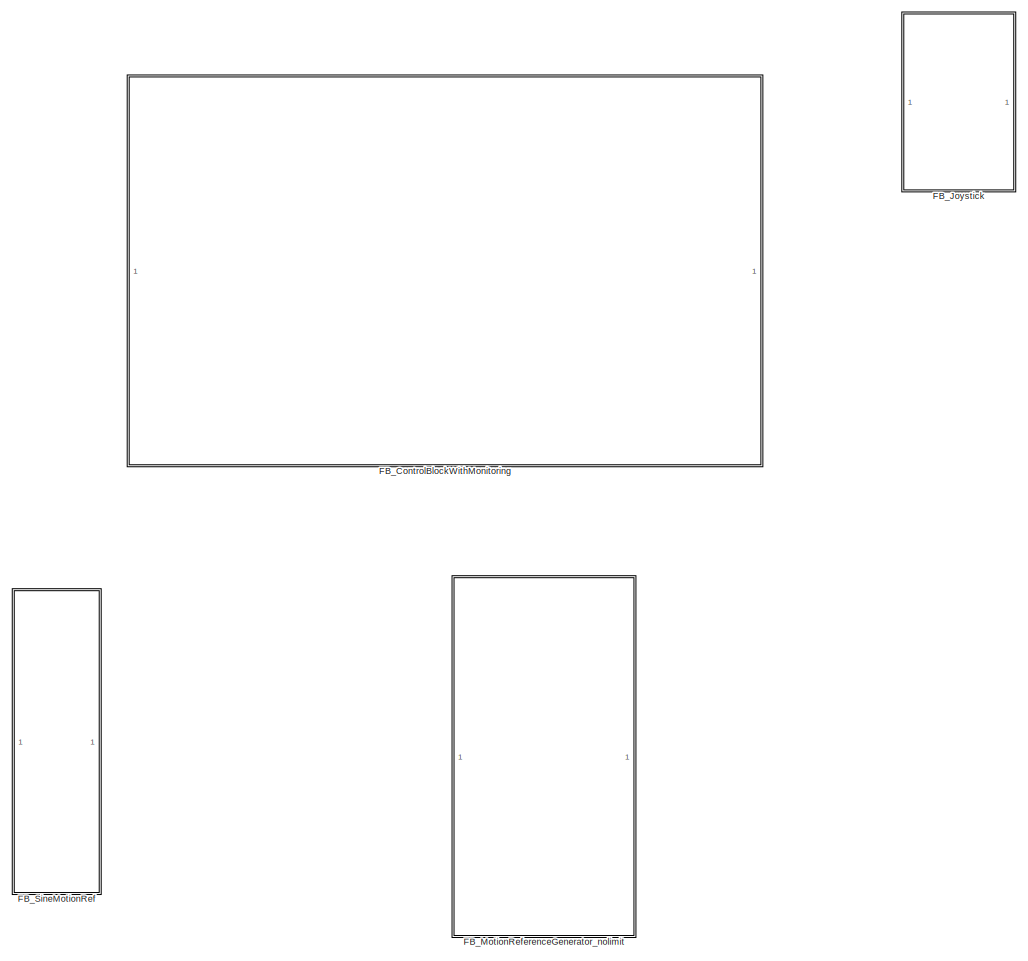
[diagram: root canvas - part 1/2, center side, full height]
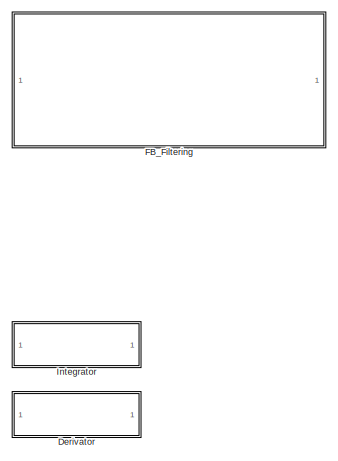
[diagram: root canvas - part 2/2, top left region]
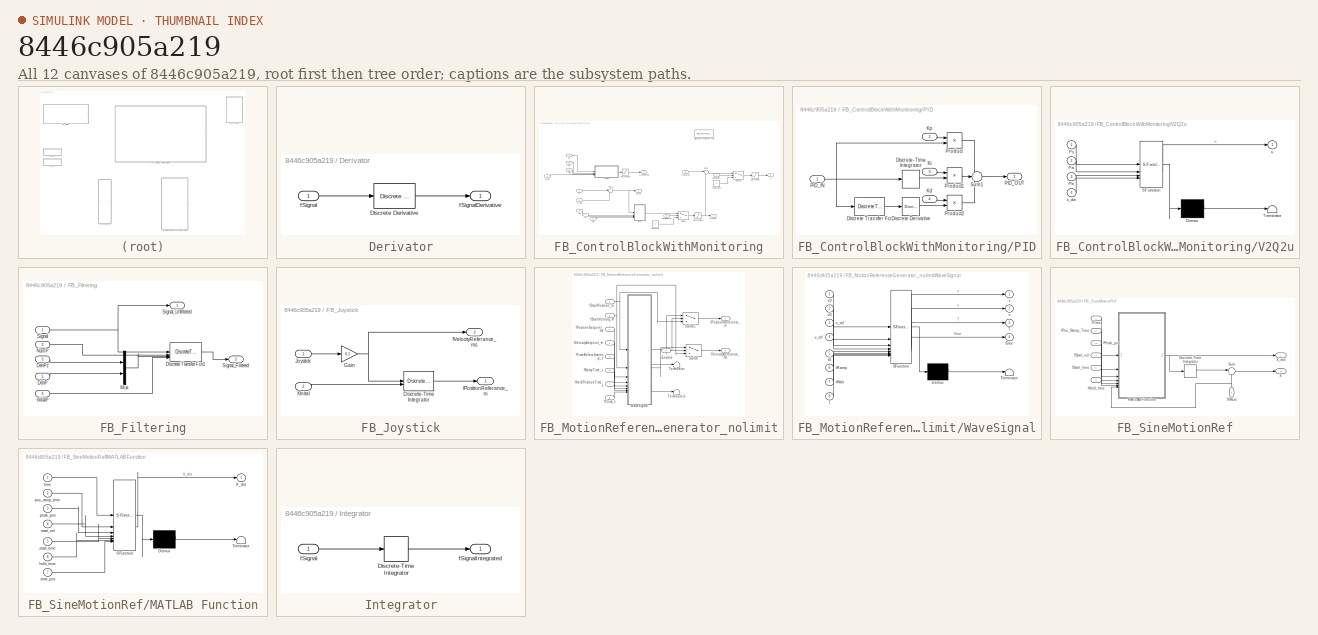
[diagram: thumbnail index - all 12 canvases of the model, root first then tree order]
MODEL slx_8446c905a219
KIND model
CONFIG AbsTol = auto
CONFIG EnableMultiTasking = off
CONFIG FixedStep = 0.001
CONFIG MaxStep = auto
CONFIG MinStep = auto
CONFIG RelTol = 1e-3
CONFIG SampleTimeConstraint = Unconstrained
CONFIG SolverName = FixedStepAuto
CONFIG StartTime = 0.0
CONFIG StopTime = 10.0
BLOCK [SubSystem] Derivator
  TreatAsAtomicUnit = on
BLOCK [Reference] Derivator/Discrete Derivative  REF=simulink/Discrete/Discrete Derivative
  SourceBlock = simulink/Discrete/Discrete Derivative
  SourceType = Discrete Derivative
BLOCK [Inport] Derivator/fSignal
BLOCK [Outport] Derivator/fSignalDerivative
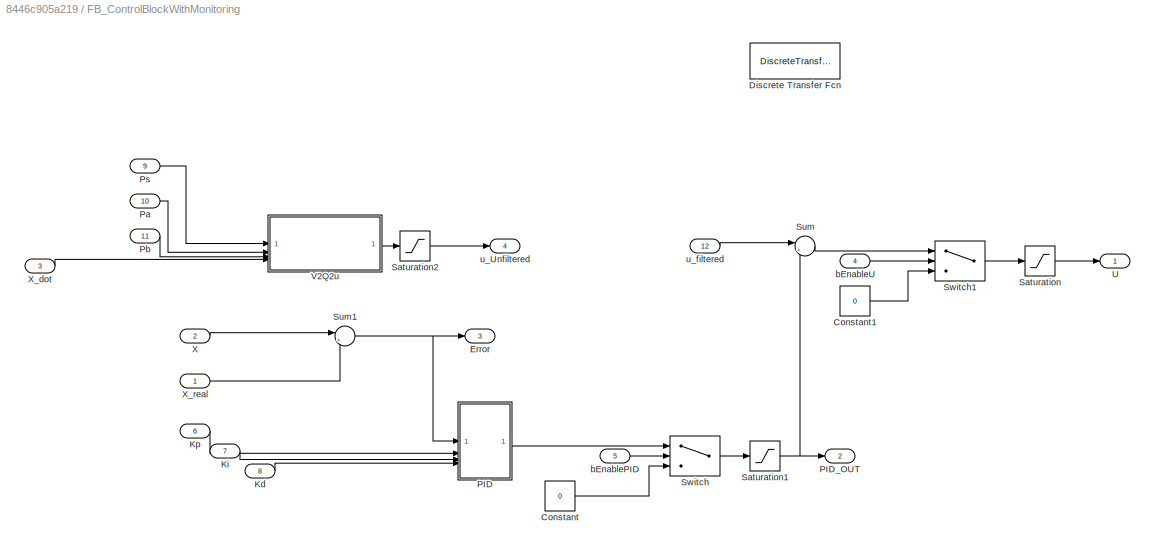
BLOCK [SubSystem] FB_ControlBlockWithMonitoring
  PortSchema = {"entries":[{"content":{"sides":[{"content":{"connectorIds":["In1","In2","In3"]},"type":"ConnectorPlacement.EquallySpacedRectSide","uuid":"e7dc98bc-0c39-42fc-9d44-5c528a861935"},{"content":{"connectorIds":["In6","In7","In8","In9","In10","In11","In12","Out1","Out2","Out3"],"side":"RIGHT"},"type":"ConnectorPlacement.EquallySpacedRectSide","uuid":"7a7fb2e4-7f4e-4840-80a8-3a9723ecfbf6"},{"content":{"c...<+455ch>
  TreatAsAtomicUnit = on
BLOCK [Constant] FB_ControlBlockWithMonitoring/Constant
  Value = 0
BLOCK [Constant] FB_ControlBlockWithMonitoring/Constant1
  Value = 0
BLOCK [DiscreteTransferFcn] FB_ControlBlockWithMonitoring/Discrete Transfer Fcn
  CloseFcn = dspblkCoreblockFVToolHelper(gcbh,'close');
  Commented = on
  CopyFcn = dspblkCoreblockFVToolHelper(gcbh,'copy');
  DeleteFcn = dspblkCoreblockFVToolHelper(gcbh,'close');
  Denominator = [1 -0.9048]
  InputPortMap = u0
  LoadFcn = dspblkCoreblockFVToolHelper(gcbh,'load');
  ModelCloseFcn = dspblkCoreblockFVToolHelper(gcbh,'close');
  Numerator = [0.09516]
  PostSaveFcn = dspblkCoreblockFVToolHelper(gcbh,'postsave');
  PreSaveFcn = dspblkCoreblockFVToolHelper(gcbh,'presave');
BLOCK [Outport] FB_ControlBlockWithMonitoring/Error
  Port = 3
BLOCK [Inport] FB_ControlBlockWithMonitoring/Kd
  Port = 8
BLOCK [Inport] FB_ControlBlockWithMonitoring/Ki
  Port = 7
BLOCK [Inport] FB_ControlBlockWithMonitoring/Kp
  Port = 6
BLOCK [SubSystem] FB_ControlBlockWithMonitoring/PID
BLOCK [Reference] FB_ControlBlockWithMonitoring/PID/Discrete Derivative  REF=simulink/Discrete/Discrete Derivative
  SourceBlock = simulink/Discrete/Discrete Derivative
  SourceType = Discrete Derivative
BLOCK [DiscreteTransferFcn] FB_ControlBlockWithMonitoring/PID/Discrete Transfer Fcn
  CloseFcn = dspblkCoreblockFVToolHelper(gcbh,'close');
  CopyFcn = dspblkCoreblockFVToolHelper(gcbh,'copy');
  DeleteFcn = dspblkCoreblockFVToolHelper(gcbh,'close');
  Denominator = [1 -0.999]
  InputPortMap = u0
  LoadFcn = dspblkCoreblockFVToolHelper(gcbh,'load');
  ModelCloseFcn = dspblkCoreblockFVToolHelper(gcbh,'close');
  Numerator = [0.0009995]
  PostSaveFcn = dspblkCoreblockFVToolHelper(gcbh,'postsave');
  PreSaveFcn = dspblkCoreblockFVToolHelper(gcbh,'presave');
BLOCK [DiscreteIntegrator] FB_ControlBlockWithMonitoring/PID/Discrete-Time Integrator
  ICPrevOutput = DiscIntNeverNeededParam
  ICPrevScaledInput = DiscIntNeverNeededParam
  InitialConditionSetting = Auto
  SampleTime = -1
BLOCK [Inport] FB_ControlBlockWithMonitoring/PID/Kd
  NameLocation = top
  Port = 4
BLOCK [Inport] FB_ControlBlockWithMonitoring/PID/Ki
  NameLocation = top
  Port = 3
BLOCK [Inport] FB_ControlBlockWithMonitoring/PID/Kp
  NameLocation = top
  Port = 2
BLOCK [Inport] FB_ControlBlockWithMonitoring/PID/PID_IN
BLOCK [Outport] FB_ControlBlockWithMonitoring/PID/PID_OUT
BLOCK [Product] FB_ControlBlockWithMonitoring/PID/Product
BLOCK [Product] FB_ControlBlockWithMonitoring/PID/Product1
BLOCK [Product] FB_ControlBlockWithMonitoring/PID/Product2
BLOCK [Sum] FB_ControlBlockWithMonitoring/PID/Sum1
  Inputs = +++
BLOCK [Outport] FB_ControlBlockWithMonitoring/PID_OUT
  Port = 2
BLOCK [Inport] FB_ControlBlockWithMonitoring/Pa
  Port = 10
BLOCK [Inport] FB_ControlBlockWithMonitoring/Pb
  Port = 11
BLOCK [Inport] FB_ControlBlockWithMonitoring/Ps
  Port = 9
BLOCK [Saturate] FB_ControlBlockWithMonitoring/Saturation
  LowerLimit = -1
  UpperLimit = 1
BLOCK [Saturate] FB_ControlBlockWithMonitoring/Saturation1
  LowerLimit = -1
  UpperLimit = 1
BLOCK [Saturate] FB_ControlBlockWithMonitoring/Saturation2
  LowerLimit = -1
  UpperLimit = 1
BLOCK [Sum] FB_ControlBlockWithMonitoring/Sum
  Inputs = |++
BLOCK [Sum] FB_ControlBlockWithMonitoring/Sum1
  Inputs = |+-
BLOCK [Switch] FB_ControlBlockWithMonitoring/Switch
  Criteria = u2 > Threshold
  InputSameDT = off
  SaturateOnIntegerOverflow = off
BLOCK [Switch] FB_ControlBlockWithMonitoring/Switch1
  Criteria = u2 > Threshold
  InputSameDT = off
  SaturateOnIntegerOverflow = off
BLOCK [Outport] FB_ControlBlockWithMonitoring/U
BLOCK [SubSystem] FB_ControlBlockWithMonitoring/V2Q2u
  ErrorFcn = Stateflow.Translate.translate
  PermitHierarchicalResolution = ExplicitOnly
  SFBlockType = MATLAB Function
  TreatAsAtomicUnit = on
BLOCK [Demux] FB_ControlBlockWithMonitoring/V2Q2u/ Demux 
  Outputs = 1
BLOCK [S-Function] FB_ControlBlockWithMonitoring/V2Q2u/ SFunction 
  EnableBusSupport = on
  FunctionName = sf_sfun
  PortCounts = [4 2]
  SFcnIsStateOwnerBlock = off
  SFunctionDeploymentMode = off
  Tag = Stateflow S-Function 5
BLOCK [Terminator] FB_ControlBlockWithMonitoring/V2Q2u/ Terminator 
BLOCK [Inport] FB_ControlBlockWithMonitoring/V2Q2u/Pa
  Port = 2
BLOCK [Inport] FB_ControlBlockWithMonitoring/V2Q2u/Pb
  Port = 3
BLOCK [Inport] FB_ControlBlockWithMonitoring/V2Q2u/Ps
BLOCK [Outport] FB_ControlBlockWithMonitoring/V2Q2u/u
BLOCK [Inport] FB_ControlBlockWithMonitoring/V2Q2u/x_dot
  Port = 4
BLOCK [Inport] FB_ControlBlockWithMonitoring/X
  Port = 2
BLOCK [Inport] FB_ControlBlockWithMonitoring/X_dot
  Port = 3
BLOCK [Inport] FB_ControlBlockWithMonitoring/X_real
BLOCK [Inport] FB_ControlBlockWithMonitoring/bEnablePID
  OutDataTypeStr = boolean
  Port = 5
BLOCK [Inport] FB_ControlBlockWithMonitoring/bEnableU
  OutDataTypeStr = boolean
  Port = 4
BLOCK [Outport] FB_ControlBlockWithMonitoring/u_Unfiltered
  Port = 4
BLOCK [Inport] FB_ControlBlockWithMonitoring/u_filtered
  Port = 12
BLOCK [SubSystem] FB_Filtering
  TreatAsAtomicUnit = on
BLOCK [Inport] FB_Filtering/DenP
  Port = 5
BLOCK [Inport] FB_Filtering/DenPz
  Port = 3
BLOCK [DiscreteTransferFcn] FB_Filtering/Discrete Transfer Fcn1
  CloseFcn = dspblkCoreblockFVToolHelper(gcbh,'close');
  CopyFcn = dspblkCoreblockFVToolHelper(gcbh,'copy');
  DeleteFcn = dspblkCoreblockFVToolHelper(gcbh,'close');
  Denominator = [1 -0.9969]
  DenominatorSource = Input port
  InitialStatesSource = Input port
  InputPortMap = u0,p1,p3,p5
  LoadFcn = dspblkCoreblockFVToolHelper(gcbh,'load');
  ModelCloseFcn = dspblkCoreblockFVToolHelper(gcbh,'close');
  Numerator = [0.003137]
  NumeratorSource = Input port
  PostSaveFcn = dspblkCoreblockFVToolHelper(gcbh,'postsave');
  PreSaveFcn = dspblkCoreblockFVToolHelper(gcbh,'presave');
  a0EqualsOne = on
BLOCK [Inport] FB_Filtering/InitialP
  Port = 4
BLOCK [Mux] FB_Filtering/Mux
  DisplayOption = bar
  Inputs = 2
BLOCK [Inport] FB_Filtering/NumP
  Port = 2
BLOCK [Inport] FB_Filtering/Signal
BLOCK [Outport] FB_Filtering/Signal_Filtered
  Port = 2
BLOCK [Outport] FB_Filtering/Signal_Unfiltered
BLOCK [SubSystem] FB_Joystick
  TreatAsAtomicUnit = on
BLOCK [DiscreteIntegrator] FB_Joystick/Discrete-Time Integrator
  ICPrevOutput = DiscIntNeverNeededParam
  ICPrevScaledInput = DiscIntNeverNeededParam
  InitialConditionSetting = Auto
  InitialConditionSource = external
  LimitOutput = on
  LowerSaturationLimit = 0
  SampleTime = -1
  UpperSaturationLimit = 0.45
BLOCK [Gain] FB_Joystick/Gain
  Gain = 0.1
BLOCK [Inport] FB_Joystick/Joystick
BLOCK [Inport] FB_Joystick/XInital
  Port = 2
BLOCK [Outport] FB_Joystick/fPositionReferance_m
BLOCK [Outport] FB_Joystick/fVelocityReferance_ms
  Port = 2
BLOCK [SubSystem] FB_MotionReferenceGenerator_nolimit
  TreatAsAtomicUnit = on
  VariantControl = Ramp_Profile
BLOCK [Switch] FB_MotionReferenceGenerator_nolimit/Switch
  Criteria = u2 > Threshold
  InputSameDT = off
  SaturateOnIntegerOverflow = off
BLOCK [Switch] FB_MotionReferenceGenerator_nolimit/Switch1
  Criteria = u2 > Threshold
  InputSameDT = off
  SaturateOnIntegerOverflow = off
BLOCK [Terminator] FB_MotionReferenceGenerator_nolimit/Terminator
BLOCK [Terminator] FB_MotionReferenceGenerator_nolimit/Terminator1
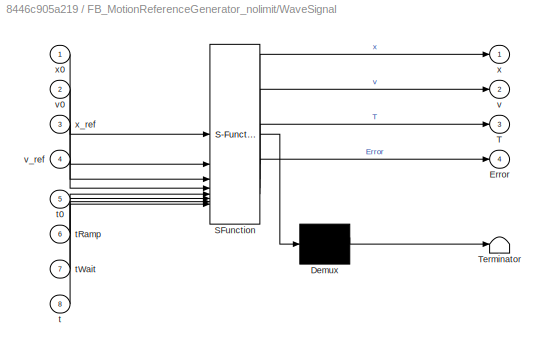
BLOCK [SubSystem] FB_MotionReferenceGenerator_nolimit/WaveSignal
  ErrorFcn = Stateflow.Translate.translate
  PermitHierarchicalResolution = ExplicitOnly
  SFBlockType = MATLAB Function
  TreatAsAtomicUnit = on
BLOCK [Demux] FB_MotionReferenceGenerator_nolimit/WaveSignal/ Demux 
  Outputs = 1
BLOCK [S-Function] FB_MotionReferenceGenerator_nolimit/WaveSignal/ SFunction 
  EnableBusSupport = on
  FunctionName = sf_sfun
  PortCounts = [8 5]
  SFcnIsStateOwnerBlock = off
  SFunctionDeploymentMode = off
  Tag = Stateflow S-Function 1
BLOCK [Terminator] FB_MotionReferenceGenerator_nolimit/WaveSignal/ Terminator 
BLOCK [Outport] FB_MotionReferenceGenerator_nolimit/WaveSignal/Error
  Port = 4
  VectorParamsAs1DForOutWhenUnconnected = off
BLOCK [Outport] FB_MotionReferenceGenerator_nolimit/WaveSignal/T
  Port = 3
  VectorParamsAs1DForOutWhenUnconnected = off
BLOCK [Inport] FB_MotionReferenceGenerator_nolimit/WaveSignal/t
  Port = 8
BLOCK [Inport] FB_MotionReferenceGenerator_nolimit/WaveSignal/t0
  Port = 5
BLOCK [Inport] FB_MotionReferenceGenerator_nolimit/WaveSignal/tRamp
  Port = 6
BLOCK [Inport] FB_MotionReferenceGenerator_nolimit/WaveSignal/tWait
  Port = 7
BLOCK [Outport] FB_MotionReferenceGenerator_nolimit/WaveSignal/v
  Port = 2
  VectorParamsAs1DForOutWhenUnconnected = off
BLOCK [Inport] FB_MotionReferenceGenerator_nolimit/WaveSignal/v0
  Port = 2
BLOCK [Inport] FB_MotionReferenceGenerator_nolimit/WaveSignal/v_ref
  Port = 4
BLOCK [Outport] FB_MotionReferenceGenerator_nolimit/WaveSignal/x
  VectorParamsAs1DForOutWhenUnconnected = off
BLOCK [Inport] FB_MotionReferenceGenerator_nolimit/WaveSignal/x0
BLOCK [Inport] FB_MotionReferenceGenerator_nolimit/WaveSignal/x_ref
  Port = 3
BLOCK [Inport] FB_MotionReferenceGenerator_nolimit/bEnable
  OutDataTypeStr = boolean
  Port = 9
BLOCK [Inport] FB_MotionReferenceGenerator_nolimit/fClock_s
  Port = 8
BLOCK [Inport] FB_MotionReferenceGenerator_nolimit/fHoldPositionTime_s
  Port = 7
BLOCK [Outport] FB_MotionReferenceGenerator_nolimit/fPositionReference_m
  VectorParamsAs1DForOutWhenUnconnected = off
BLOCK [Inport] FB_MotionReferenceGenerator_nolimit/fPositionSetpoint_ms
  Port = 3
BLOCK [Inport] FB_MotionReferenceGenerator_nolimit/fRampTime_s
  Port = 6
BLOCK [Inport] FB_MotionReferenceGenerator_nolimit/fStartPosition_m
BLOCK [Inport] FB_MotionReferenceGenerator_nolimit/fStartVelocity_m
  Port = 2
BLOCK [Inport] FB_MotionReferenceGenerator_nolimit/fTimeBeforeStarting_s
  Port = 5
BLOCK [Outport] FB_MotionReferenceGenerator_nolimit/fVelocityReference_ms
  Port = 2
  VectorParamsAs1DForOutWhenUnconnected = off
BLOCK [Inport] FB_MotionReferenceGenerator_nolimit/fVelocitySetpoint_m
  Port = 4
BLOCK [SubSystem] FB_SineMotionRef
  TreatAsAtomicUnit = on
BLOCK [DiscreteIntegrator] FB_SineMotionRef/Discrete-Time Integrator
  ICPrevOutput = DiscIntNeverNeededParam
  ICPrevScaledInput = DiscIntNeverNeededParam
  InitialConditionSetting = Auto
  SampleTime = -1
BLOCK [SubSystem] FB_SineMotionRef/MATLAB Function
  ErrorFcn = Stateflow.Translate.translate
  PermitHierarchicalResolution = ExplicitOnly
  SFBlockType = MATLAB Function
  TreatAsAtomicUnit = on
BLOCK [Demux] FB_SineMotionRef/MATLAB Function/ Demux 
  Outputs = 1
BLOCK [S-Function] FB_SineMotionRef/MATLAB Function/ SFunction 
  EnableBusSupport = on
  FunctionName = sf_sfun
  PortCounts = [7 2]
  SFcnIsStateOwnerBlock = off
  SFunctionDeploymentMode = off
  Tag = Stateflow S-Function 2
BLOCK [Terminator] FB_SineMotionRef/MATLAB Function/ Terminator 
BLOCK [Outport] FB_SineMotionRef/MATLAB Function/X_dot
BLOCK [Inport] FB_SineMotionRef/MATLAB Function/hold_time
  Port = 6
BLOCK [Inport] FB_SineMotionRef/MATLAB Function/peak_pos
  Port = 3
BLOCK [Inport] FB_SineMotionRef/MATLAB Function/pos_ramp_time
  Port = 2
BLOCK [Inport] FB_SineMotionRef/MATLAB Function/start_pos
  Port = 7
BLOCK [Inport] FB_SineMotionRef/MATLAB Function/start_time
  Port = 5
BLOCK [Inport] FB_SineMotionRef/MATLAB Function/start_vel
  Port = 4
BLOCK [Inport] FB_SineMotionRef/MATLAB Function/time
BLOCK [Sum] FB_SineMotionRef/Sum
  Inputs = |++
BLOCK [Outport] FB_SineMotionRef/X
  Port = 2
BLOCK [Outport] FB_SineMotionRef/X_dot
BLOCK [Inport] FB_SineMotionRef/fHold_time
  Port = 6
BLOCK [Inport] FB_SineMotionRef/fPeak_pos
  Port = 3
BLOCK [Inport] FB_SineMotionRef/fPos_Ramp_Time
  Port = 2
BLOCK [Inport] FB_SineMotionRef/fStart_time
  Port = 5
BLOCK [Inport] FB_SineMotionRef/fStart_vel
  Port = 4
BLOCK [Inport] FB_SineMotionRef/fTime
BLOCK [Inport] FB_SineMotionRef/fXReal
  NameLocation = right
  Port = 7
BLOCK [SubSystem] Integrator
  TreatAsAtomicUnit = on
BLOCK [DiscreteIntegrator] Integrator/Discrete-Time Integrator
  ICPrevOutput = DiscIntNeverNeededParam
  ICPrevScaledInput = DiscIntNeverNeededParam
  InitialConditionSetting = Auto
  SampleTime = -1
BLOCK [Inport] Integrator/fSignal
BLOCK [Outport] Integrator/fSignalIntegrated
LINE Derivator/Discrete Derivative:1 -> Derivator/fSignalDerivative:1
LINE Derivator/fSignal:1 -> Derivator/Discrete Derivative:1
LINE FB_ControlBlockWithMonitoring/Constant1:1 -> FB_ControlBlockWithMonitoring/Switch1:3
LINE FB_ControlBlockWithMonitoring/Constant:1 -> FB_ControlBlockWithMonitoring/Switch:3
LINE FB_ControlBlockWithMonitoring/Kd:1 -> FB_ControlBlockWithMonitoring/PID:4
LINE FB_ControlBlockWithMonitoring/Ki:1 -> FB_ControlBlockWithMonitoring/PID:3
LINE FB_ControlBlockWithMonitoring/Kp:1 -> FB_ControlBlockWithMonitoring/PID:2
LINE FB_ControlBlockWithMonitoring/PID/Discrete Derivative:1 -> FB_ControlBlockWithMonitoring/PID/Product2:2
LINE FB_ControlBlockWithMonitoring/PID/Discrete Transfer Fcn:1 -> FB_ControlBlockWithMonitoring/PID/Discrete Derivative:1
LINE FB_ControlBlockWithMonitoring/PID/Discrete-Time Integrator:1 -> FB_ControlBlockWithMonitoring/PID/Product1:2
LINE FB_ControlBlockWithMonitoring/PID/Kd:1 -> FB_ControlBlockWithMonitoring/PID/Product2:1
LINE FB_ControlBlockWithMonitoring/PID/Ki:1 -> FB_ControlBlockWithMonitoring/PID/Product1:1
LINE FB_ControlBlockWithMonitoring/PID/Kp:1 -> FB_ControlBlockWithMonitoring/PID/Product:1
NET FB_ControlBlockWithMonitoring/PID/PID_IN:1 -> FB_ControlBlockWithMonitoring/PID/Discrete Transfer Fcn:1, FB_ControlBlockWithMonitoring/PID/Discrete-Time Integrator:1, FB_ControlBlockWithMonitoring/PID/Product:2
LINE FB_ControlBlockWithMonitoring/PID/Product1:1 -> FB_ControlBlockWithMonitoring/PID/Sum1:2
LINE FB_ControlBlockWithMonitoring/PID/Product2:1 -> FB_ControlBlockWithMonitoring/PID/Sum1:3
LINE FB_ControlBlockWithMonitoring/PID/Product:1 -> FB_ControlBlockWithMonitoring/PID/Sum1:1
LINE FB_ControlBlockWithMonitoring/PID/Sum1:1 -> FB_ControlBlockWithMonitoring/PID/PID_OUT:1
LINE FB_ControlBlockWithMonitoring/PID:1 -> FB_ControlBlockWithMonitoring/Switch:1
LINE FB_ControlBlockWithMonitoring/Pa:1 -> FB_ControlBlockWithMonitoring/V2Q2u:2
LINE FB_ControlBlockWithMonitoring/Pb:1 -> FB_ControlBlockWithMonitoring/V2Q2u:3
LINE FB_ControlBlockWithMonitoring/Ps:1 -> FB_ControlBlockWithMonitoring/V2Q2u:1
NET FB_ControlBlockWithMonitoring/Saturation1:1 -> FB_ControlBlockWithMonitoring/PID_OUT:1, FB_ControlBlockWithMonitoring/Sum:2
LINE FB_ControlBlockWithMonitoring/Saturation2:1 -> FB_ControlBlockWithMonitoring/u_Unfiltered:1
LINE FB_ControlBlockWithMonitoring/Saturation:1 -> FB_ControlBlockWithMonitoring/U:1
NET FB_ControlBlockWithMonitoring/Sum1:1 -> FB_ControlBlockWithMonitoring/Error:1, FB_ControlBlockWithMonitoring/PID:1
LINE FB_ControlBlockWithMonitoring/Sum:1 -> FB_ControlBlockWithMonitoring/Switch1:1
LINE FB_ControlBlockWithMonitoring/Switch1:1 -> FB_ControlBlockWithMonitoring/Saturation:1
LINE FB_ControlBlockWithMonitoring/Switch:1 -> FB_ControlBlockWithMonitoring/Saturation1:1
LINE FB_ControlBlockWithMonitoring/V2Q2u:1 -> FB_ControlBlockWithMonitoring/Saturation2:1
LINE FB_ControlBlockWithMonitoring/X:1 -> FB_ControlBlockWithMonitoring/Sum1:1
LINE FB_ControlBlockWithMonitoring/X_dot:1 -> FB_ControlBlockWithMonitoring/V2Q2u:4
LINE FB_ControlBlockWithMonitoring/X_real:1 -> FB_ControlBlockWithMonitoring/Sum1:2
LINE FB_ControlBlockWithMonitoring/bEnablePID:1 -> FB_ControlBlockWithMonitoring/Switch:2
LINE FB_ControlBlockWithMonitoring/bEnableU:1 -> FB_ControlBlockWithMonitoring/Switch1:2
LINE FB_ControlBlockWithMonitoring/u_filtered:1 -> FB_ControlBlockWithMonitoring/Sum:1
LINE FB_Filtering/DenP:1 -> FB_Filtering/Mux:2
LINE FB_Filtering/DenPz:1 -> FB_Filtering/Mux:1
LINE FB_Filtering/Discrete Transfer Fcn1:1 -> FB_Filtering/Signal_Filtered:1
LINE FB_Filtering/InitialP:1 -> FB_Filtering/Discrete Transfer Fcn1:4
LINE FB_Filtering/Mux:1 -> FB_Filtering/Discrete Transfer Fcn1:3
LINE FB_Filtering/NumP:1 -> FB_Filtering/Discrete Transfer Fcn1:2
NET FB_Filtering/Signal:1 -> FB_Filtering/Discrete Transfer Fcn1:1, FB_Filtering/Signal_Unfiltered:1
LINE FB_Joystick/Discrete-Time Integrator:1 -> FB_Joystick/fPositionReferance_m:1
NET FB_Joystick/Gain:1 -> FB_Joystick/Discrete-Time Integrator:1, FB_Joystick/fVelocityReferance_ms:1
LINE FB_Joystick/Joystick:1 -> FB_Joystick/Gain:1
LINE FB_Joystick/XInital:1 -> FB_Joystick/Discrete-Time Integrator:2
LINE FB_MotionReferenceGenerator_nolimit/Switch1:1 -> FB_MotionReferenceGenerator_nolimit/fPositionReference_m:1
LINE FB_MotionReferenceGenerator_nolimit/Switch:1 -> FB_MotionReferenceGenerator_nolimit/fVelocityReference_ms:1
LINE FB_MotionReferenceGenerator_nolimit/WaveSignal:1 -> FB_MotionReferenceGenerator_nolimit/Switch1:1
LINE FB_MotionReferenceGenerator_nolimit/WaveSignal:2 -> FB_MotionReferenceGenerator_nolimit/Switch:1
LINE FB_MotionReferenceGenerator_nolimit/WaveSignal:3 -> FB_MotionReferenceGenerator_nolimit/Terminator:1
LINE FB_MotionReferenceGenerator_nolimit/WaveSignal:4 -> FB_MotionReferenceGenerator_nolimit/Terminator1:1
NET FB_MotionReferenceGenerator_nolimit/bEnable:1 -> FB_MotionReferenceGenerator_nolimit/Switch1:2, FB_MotionReferenceGenerator_nolimit/Switch:2
LINE FB_MotionReferenceGenerator_nolimit/fClock_s:1 -> FB_MotionReferenceGenerator_nolimit/WaveSignal:8
LINE FB_MotionReferenceGenerator_nolimit/fHoldPositionTime_s:1 -> FB_MotionReferenceGenerator_nolimit/WaveSignal:7
LINE FB_MotionReferenceGenerator_nolimit/fPositionSetpoint_ms:1 -> FB_MotionReferenceGenerator_nolimit/WaveSignal:3
LINE FB_MotionReferenceGenerator_nolimit/fRampTime_s:1 -> FB_MotionReferenceGenerator_nolimit/WaveSignal:6
NET FB_MotionReferenceGenerator_nolimit/fStartPosition_m:1 -> FB_MotionReferenceGenerator_nolimit/Switch1:3, FB_MotionReferenceGenerator_nolimit/WaveSignal:1
NET FB_MotionReferenceGenerator_nolimit/fStartVelocity_m:1 -> FB_MotionReferenceGenerator_nolimit/Switch:3, FB_MotionReferenceGenerator_nolimit/WaveSignal:2
LINE FB_MotionReferenceGenerator_nolimit/fTimeBeforeStarting_s:1 -> FB_MotionReferenceGenerator_nolimit/WaveSignal:5
LINE FB_MotionReferenceGenerator_nolimit/fVelocitySetpoint_m:1 -> FB_MotionReferenceGenerator_nolimit/WaveSignal:4
LINE FB_SineMotionRef/Discrete-Time Integrator:1 -> FB_SineMotionRef/Sum:1
NET FB_SineMotionRef/MATLAB Function:1 -> FB_SineMotionRef/Discrete-Time Integrator:1, FB_SineMotionRef/X_dot:1
LINE FB_SineMotionRef/Sum:1 -> FB_SineMotionRef/X:1
LINE FB_SineMotionRef/fHold_time:1 -> FB_SineMotionRef/MATLAB Function:6
LINE FB_SineMotionRef/fPeak_pos:1 -> FB_SineMotionRef/MATLAB Function:3
LINE FB_SineMotionRef/fPos_Ramp_Time:1 -> FB_SineMotionRef/MATLAB Function:2
LINE FB_SineMotionRef/fStart_time:1 -> FB_SineMotionRef/MATLAB Function:5
LINE FB_SineMotionRef/fStart_vel:1 -> FB_SineMotionRef/MATLAB Function:4
LINE FB_SineMotionRef/fTime:1 -> FB_SineMotionRef/MATLAB Function:1
NET FB_SineMotionRef/fXReal:1 -> FB_SineMotionRef/MATLAB Function:7, FB_SineMotionRef/Sum:2
LINE Integrator/Discrete-Time Integrator:1 -> Integrator/fSignalIntegrated:1
LINE Integrator/fSignal:1 -> Integrator/Discrete-Time Integrator:1
note: NET lines group one-source signal fan-out (src -> all destinations, sorted); 1:1 wires keep LINE
CHART FB_MotionReferenceGenerator_nolimit/WaveSignal states=1 transitions=1
  STATE_LABEL 'eML_blk_kernel()'
  STATE_LABEL 'SCRIPT:\nfunction [x,v,T, Error] = fcn(x0,v0, x_ref,v_ref,t0,tRamp,tWait,t)\nx_SP = x_ref - x0;\nvs=v_ref;\nslopeExt=v0-vs;\nslopeRetr=-vs-v0;\n\nas = vs/tRamp;\ns_acc=(vs^2-v0^2)/as;\n\ntHold=(x_SP-s_acc)/vs;\n\nif tHold < 0\n    Error = 1;\nelse\n    Error = 0;\nend\n\nt1=tRamp;\nt2=tHold;\nt3=tRamp;\nt4=tWait;\nt5=t1;\nt6=t2;\nt7=t3;\n\nx = x0;\nx1 = x0 + v0*((t0+t1)-t0)-(slopeExt/t1)*((t0+t1)-t0)^2/2;\nx2 = x1 + vs*((t0+...<+1233ch>'
CHART FB_SineMotionRef/MATLAB Function states=1 transitions=1
  STATE_LABEL 'eML_blk_kernel()'
  STATE_LABEL 'SCRIPT:\nfunction X_dot  = fcn(time,pos_ramp_time,peak_pos,start_vel,start_time,hold_time,start_pos)\nmax_pos = peak_pos-start_pos;\npeak_vel = max_pos*2/pos_ramp_time;\npos_sat = peak_vel*pos_ramp_time/2 +start_pos;\namplitude_vel = peak_vel/2;\nif pos_sat <= 0.4\n    if time<start_time\n        X_dot=start_vel;\n    elseif time<=pos_ramp_time+start_time\n        X_dot=amplitude_vel-amplitude_vel*cos((2*(t...<+368ch>'
CHART FB_ControlBlockWithMonitoring/V2Q2u states=1 transitions=1
  STATE_LABEL 'eML_blk_kernel()'
  STATE_LABEL 'SCRIPT:\nfunction u = fcn(Ps, Pa, Pb, x_dot)\n\nphi = 0.7130;\nA = 33.1/100^2; % Area\nBW = 0; % deadband\nSpoolTravel = 7; % Maximum Spool Travel\na = (SpoolTravel-BW)/25; % Valve Slope Characteristic [mm/(L/min)]\ndP_0 = 7e5; % Pressure drop with compansator\n\nif x_dot > 0\n    Q = x_dot * A; % Wanted Flow\n    dP = (Ps-Pa)*1e5;\n    dp_ref = abs(dP_0/dP);\n    %dp_ref = 1;\n    Q_star = (Q * sqrt(dp_ref)) * ...<+370ch>'
CHART  states=0 transitions=0
CHART  states=0 transitions=0
CHART  states=0 transitions=0
